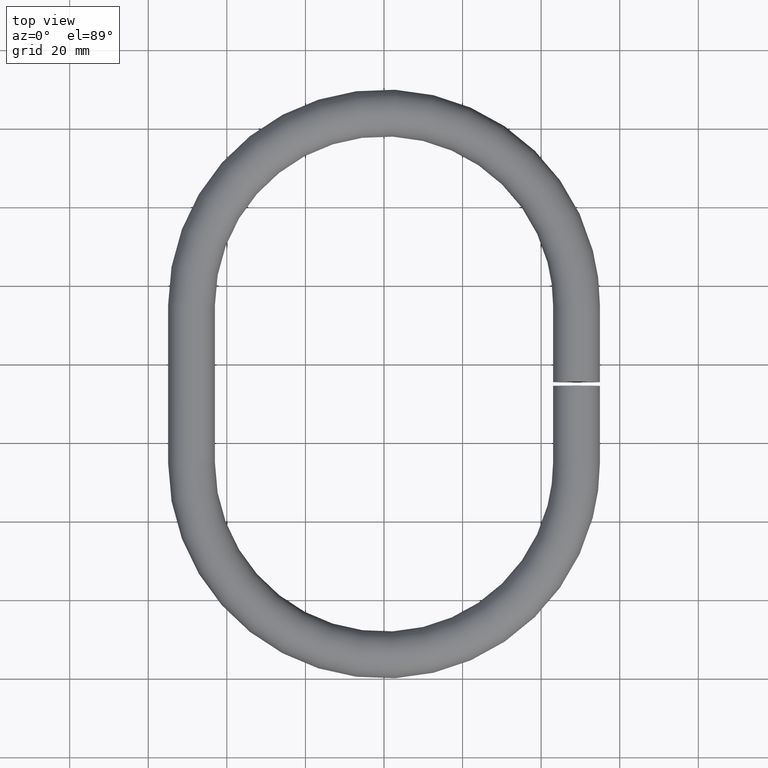
[diagram: clean part render]
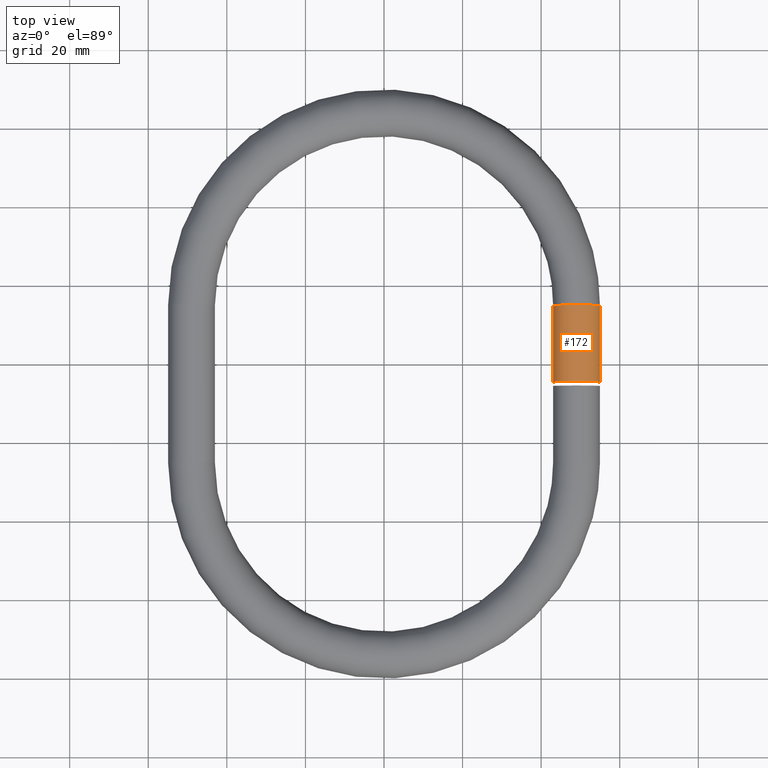
[diagram: same view with one face highlighted and labeled with its STEP entity id]
A machine part, top view. The second image highlights one B-rep face of the part: STEP entity #172.
In plain terms, the highlighted cylindrical surface (bore or boss wall) has radius 6 mm, axis along (0, -1, 0).
Its self-contained STEP definition (entity closure, byte-faithful):
#172 = ADVANCED_FACE ( 'NONE', ( #5854, #3162 ), #5520, .T. ) ;
#800 = AXIS2_PLACEMENT_3D ( 'NONE', #5738, #5086, #5778 ) ;
#1458 = DIRECTION ( 'NONE',  ( 0.0000000000000000000, 0.0000000000000000000, -1.000000000000000000 ) ) ;
#1825 = CIRCLE ( 'NONE', #7426, 6.000000000000000900 ) ;
#2378 = VERTEX_POINT ( 'NONE', #6484 ) ;
#2581 = EDGE_CURVE ( 'NONE', #6643, #6643, #3120, .T. ) ;
#2873 = ORIENTED_EDGE ( 'NONE', *, *, #8363, .T. ) ;
#3120 = CIRCLE ( 'NONE', #8008, 6.000000000000000900 ) ;
#3162 = FACE_OUTER_BOUND ( 'NONE', #3352, .T. ) ;
#3352 = EDGE_LOOP ( 'NONE', ( #7890 ) ) ;
#3665 = CARTESIAN_POINT ( 'NONE',  ( 49.00000000000000000, 95.00000000000001400, 0.0000000000000000000 ) ) ;
#4773 = DIRECTION ( 'NONE',  ( 0.0000000000000000000, 1.000000000000000000, 0.0000000000000000000 ) ) ;
#5086 = DIRECTION ( 'NONE',  ( 0.0000000000000000000, -1.000000000000000000, 0.0000000000000000000 ) ) ;
#5520 = CYLINDRICAL_SURFACE ( 'NONE', #800, 6.000000000000000900 ) ;
#5738 = CARTESIAN_POINT ( 'NONE',  ( 49.00000000000000000, 95.00000000000001400, 0.0000000000000000000 ) ) ;
#5778 = DIRECTION ( 'NONE',  ( 0.0000000000000000000, 0.0000000000000000000, -1.000000000000000000 ) ) ;
#5854 = FACE_OUTER_BOUND ( 'NONE', #6502, .T. ) ;
#6223 = CARTESIAN_POINT ( 'NONE',  ( 49.00000000000000000, 75.50000000000000000, 0.0000000000000000000 ) ) ;
#6484 = CARTESIAN_POINT ( 'NONE',  ( 49.00000000000000000, 75.50000000000000000, 6.000000000000000900 ) ) ;
#6502 = EDGE_LOOP ( 'NONE', ( #2873 ) ) ;
#6643 = VERTEX_POINT ( 'NONE', #8723 ) ;
#7148 = DIRECTION ( 'NONE',  ( -1.836970198721029700E-016, 1.000000000000000000, 0.0000000000000000000 ) ) ;
#7426 = AXIS2_PLACEMENT_3D ( 'NONE', #6223, #4773, #7582 ) ;
#7582 = DIRECTION ( 'NONE',  ( 0.0000000000000000000, 0.0000000000000000000, 1.000000000000000000 ) ) ;
#7890 = ORIENTED_EDGE ( 'NONE', *, *, #2581, .F. ) ;
#8008 = AXIS2_PLACEMENT_3D ( 'NONE', #3665, #7148, #1458 ) ;
#8363 = EDGE_CURVE ( 'NONE', #2378, #2378, #1825, .T. ) ;
#8723 = CARTESIAN_POINT ( 'NONE',  ( 49.00000000000000000, 95.00000000000001400, -6.000000000000000900 ) ) ;